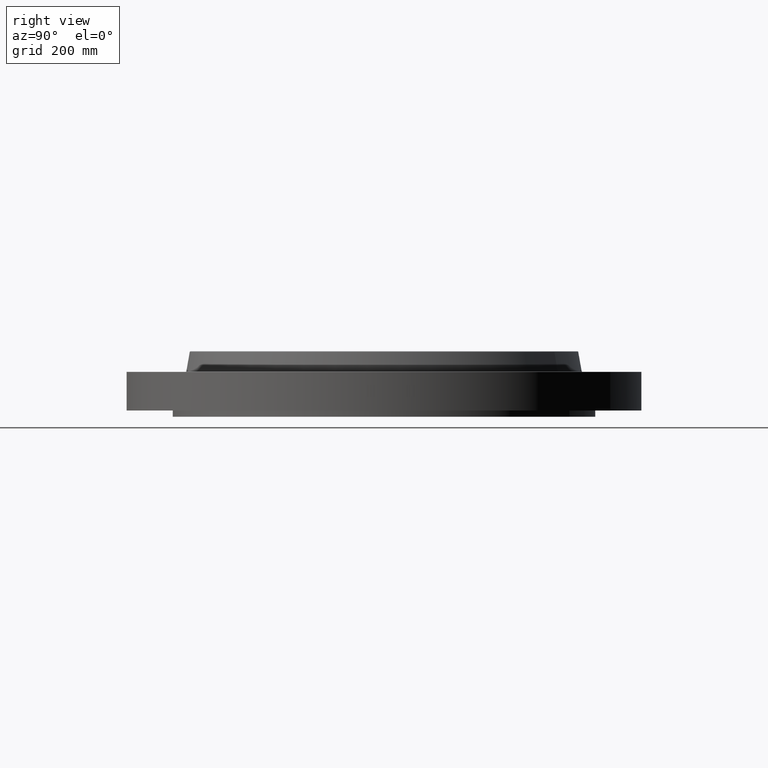
[diagram: clean part render]
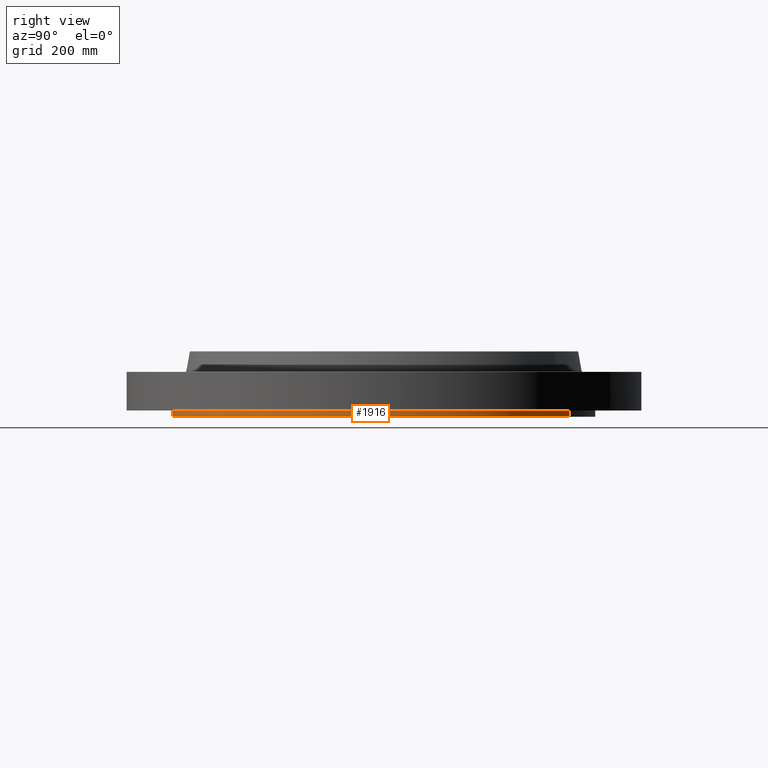
[diagram: same view with one face highlighted and labeled with its STEP entity id]
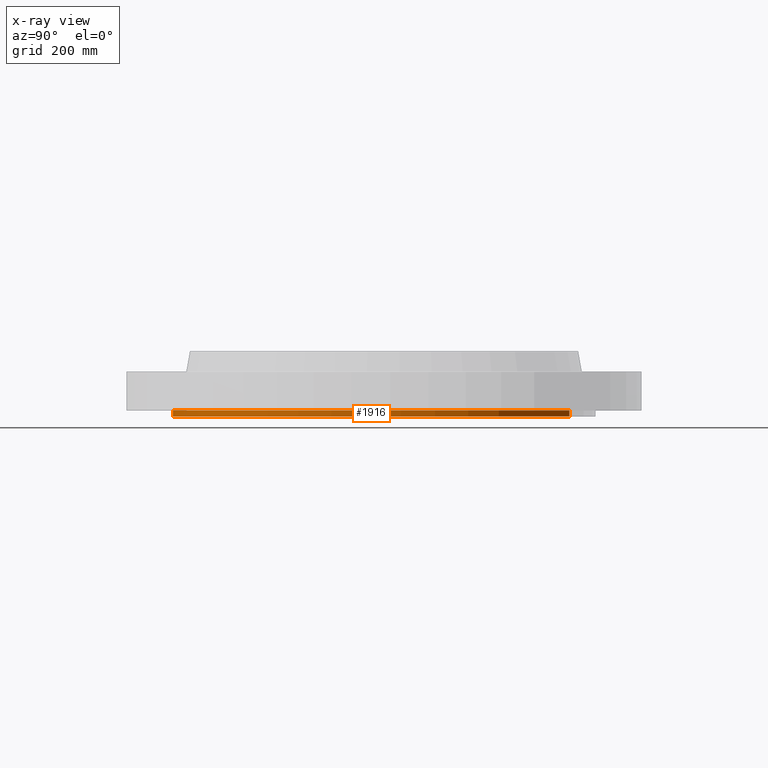
[diagram: x-ray of the same camera — body ghosted, the highlighted face saturated]
A machine part, right view. The second image highlights one B-rep face of the part: STEP entity #1916.
The next image is the same camera in x-ray: the body ghosted, the highlighted face saturated — about 0% of this face is hidden behind the body in this view.
In plain terms, the highlighted cylindrical surface (partial cylindrical patch) has radius 374.65 mm, axis along (0, 0, -1).
Its self-contained STEP definition (entity closure, byte-faithful):
#397=AXIS2_PLACEMENT_3D('Circle Axis2P3D',#395,#396,$) ;
#1786=AXIS2_PLACEMENT_3D('Circle Axis2P3D',#1784,#1785,$) ;
#1898=AXIS2_PLACEMENT_3D('Cylinder Axis2P3D',#1895,#1896,#1897) ;
#395=CARTESIAN_POINT('Axis2P3D Location',(0.,0.,-0.437500000002)) ;
#399=CARTESIAN_POINT('Vertex',(7.07152669444,12.9443427879,-0.437500000002)) ;
#401=CARTESIAN_POINT('Vertex',(-7.07152669444,-12.9443427879,-0.437500000002)) ;
#1784=CARTESIAN_POINT('Axis2P3D Location',(0.,0.,0.)) ;
#1788=CARTESIAN_POINT('Vertex',(7.07152669444,12.9443427879,1.67844740731E-015)) ;
#1790=CARTESIAN_POINT('Vertex',(-7.07152669444,-12.9443427879,1.67844740731E-015)) ;
#1895=CARTESIAN_POINT('Axis2P3D Location',(0.,0.,1.84625000001)) ;
#1900=CARTESIAN_POINT('Line Origine',(7.07152669444,12.9443427879,-0.218750000001)) ;
#1905=CARTESIAN_POINT('Line Origine',(-7.07152669444,-12.9443427879,-0.218750000001)) ;
#396=DIRECTION('Axis2P3D Direction',(0.,0.,-0.0393700787402)) ;
#1785=DIRECTION('Axis2P3D Direction',(0.,0.,-0.0393700787402)) ;
#1896=DIRECTION('Axis2P3D Direction',(0.,0.,-0.0393700787402)) ;
#1897=DIRECTION('Axis2P3D XDirection',(-0.0188750212049,-0.0345504945626,0.)) ;
#1901=DIRECTION('Vector Direction',(0.,0.,-0.0393700787402)) ;
#1906=DIRECTION('Vector Direction',(0.,0.,-0.0393700787402)) ;
#1902=VECTOR('Line Direction',#1901,0.0393700787402) ;
#1907=VECTOR('Line Direction',#1906,0.0393700787402) ;
#1911=ORIENTED_EDGE('',*,*,#403,.F.) ;
#1912=ORIENTED_EDGE('',*,*,#1904,.T.) ;
#1913=ORIENTED_EDGE('',*,*,#1792,.T.) ;
#1914=ORIENTED_EDGE('',*,*,#1909,.F.) ;
#1916=ADVANCED_FACE('PartBody',(#1915),#1899,.T.) ;
#398=CIRCLE('generated circle',#397,14.7500000001) ;
#1787=CIRCLE('generated circle',#1786,14.7500000001) ;
#1899=CYLINDRICAL_SURFACE('generated cylinder',#1898,14.7500000001) ;
#403=EDGE_CURVE('',#400,#402,#398,.T.) ;
#1792=EDGE_CURVE('',#1789,#1791,#1787,.T.) ;
#1904=EDGE_CURVE('',#400,#1789,#1903,.F.) ;
#1909=EDGE_CURVE('',#402,#1791,#1908,.F.) ;
#1910=EDGE_LOOP('',(#1911,#1912,#1913,#1914)) ;
#1915=FACE_OUTER_BOUND('',#1910,.T.) ;
#1903=LINE('Line',#1900,#1902) ;
#1908=LINE('Line',#1905,#1907) ;
#400=VERTEX_POINT('',#399) ;
#402=VERTEX_POINT('',#401) ;
#1789=VERTEX_POINT('',#1788) ;
#1791=VERTEX_POINT('',#1790) ;